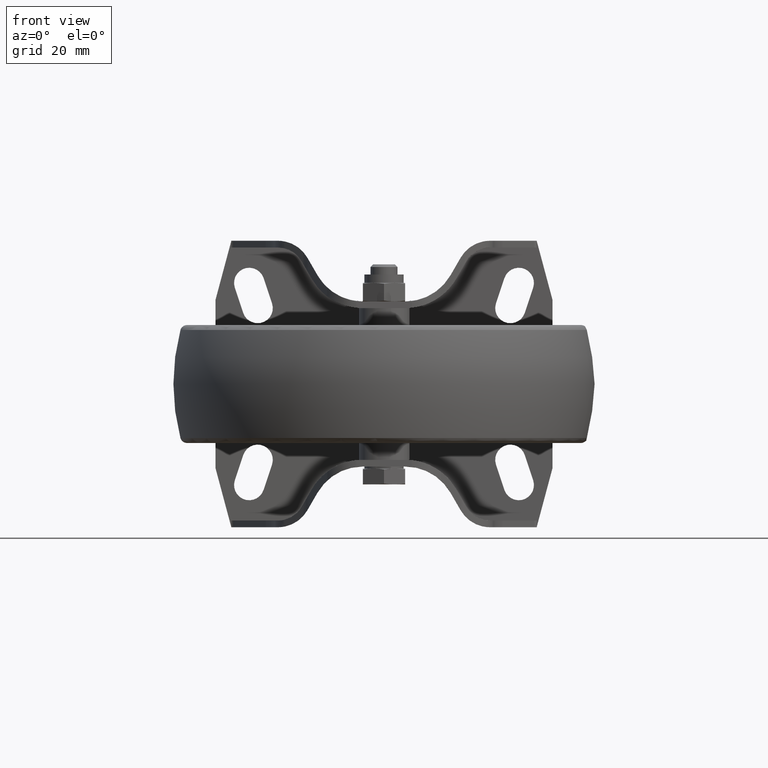
[diagram: clean part render]
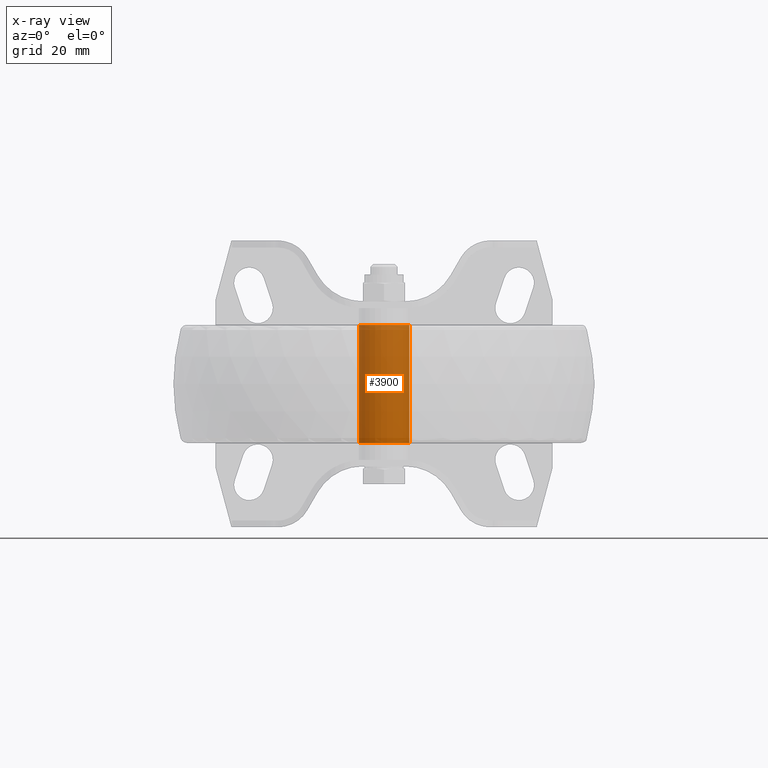
[diagram: x-ray — body ghosted, one internal face saturated and labeled with its STEP entity id]
A machine part, front view, then the same camera in x-ray: the body is ghosted and one INTERNAL B-rep face — a face not visible from any outside direction — is saturated and labeled: STEP entity #3900.
In plain terms, the highlighted cylindrical surface (bore or boss wall) has radius 7.5 mm, axis along (0, 0, 1).
Its self-contained STEP definition (entity closure, byte-faithful):
#515=LINE('',#7030,#783);
#783=VECTOR('',#5418,7.5);
#862=CYLINDRICAL_SURFACE('',#4329,7.5);
#1066=FACE_OUTER_BOUND('',#1308,.T.);
#1308=EDGE_LOOP('',(#3572,#3573,#3574,#3575));
#1479=CIRCLE('',#4328,7.5);
#1480=CIRCLE('',#4330,7.5);
#1904=VERTEX_POINT('',#7026);
#1905=VERTEX_POINT('',#7029);
#2463=EDGE_CURVE('',#1904,#1904,#1479,.T.);
#2464=EDGE_CURVE('',#1904,#1905,#515,.T.);
#2465=EDGE_CURVE('',#1905,#1905,#1480,.T.);
#3572=ORIENTED_EDGE('',*,*,#2463,.F.);
#3573=ORIENTED_EDGE('',*,*,#2464,.T.);
#3574=ORIENTED_EDGE('',*,*,#2465,.T.);
#3575=ORIENTED_EDGE('',*,*,#2464,.F.);
#3900=ADVANCED_FACE('',(#1066),#862,.F.);
#4328=AXIS2_PLACEMENT_3D('',#7027,#5414,#5415);
#4329=AXIS2_PLACEMENT_3D('',#7028,#5416,#5417);
#4330=AXIS2_PLACEMENT_3D('',#7031,#5419,#5420);
#5414=DIRECTION('center_axis',(0.,0.,1.));
#5415=DIRECTION('ref_axis',(1.,0.,0.));
#5416=DIRECTION('center_axis',(0.,0.,1.));
#5417=DIRECTION('ref_axis',(1.,0.,0.));
#5418=DIRECTION('',(0.,0.,1.));
#5419=DIRECTION('center_axis',(0.,0.,1.));
#5420=DIRECTION('ref_axis',(1.,0.,0.));
#7026=CARTESIAN_POINT('',(-7.5,-9.18485099360515E-16,-17.5));
#7027=CARTESIAN_POINT('Origin',(0.,0.,-17.5));
#7028=CARTESIAN_POINT('Origin',(0.,0.,17.5));
#7029=CARTESIAN_POINT('',(-7.5,-9.18485099360515E-16,17.5));
#7030=CARTESIAN_POINT('',(-7.5,-9.18485099360515E-16,17.5));
#7031=CARTESIAN_POINT('Origin',(0.,0.,17.5));